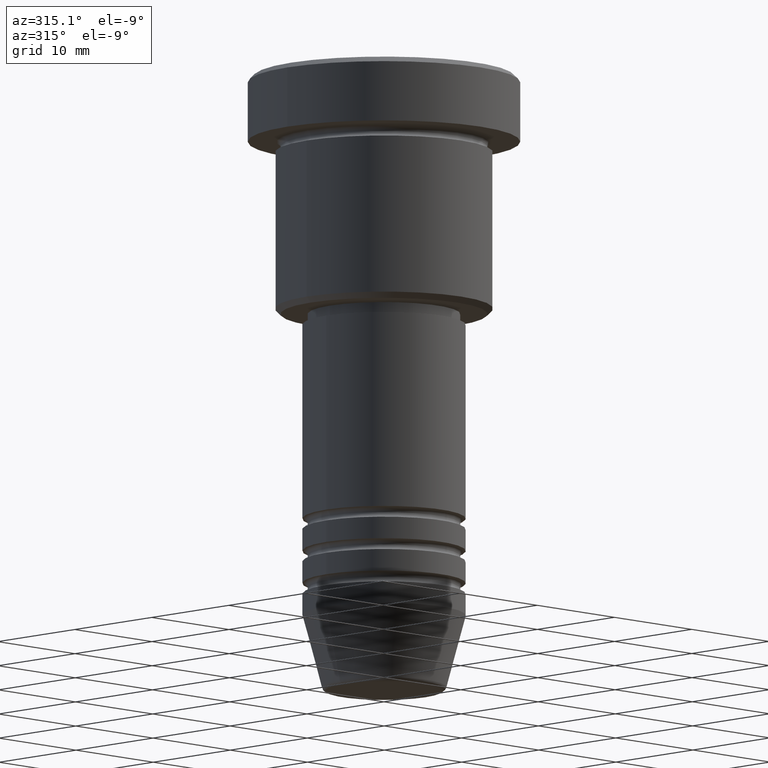
[diagram: clean part render]
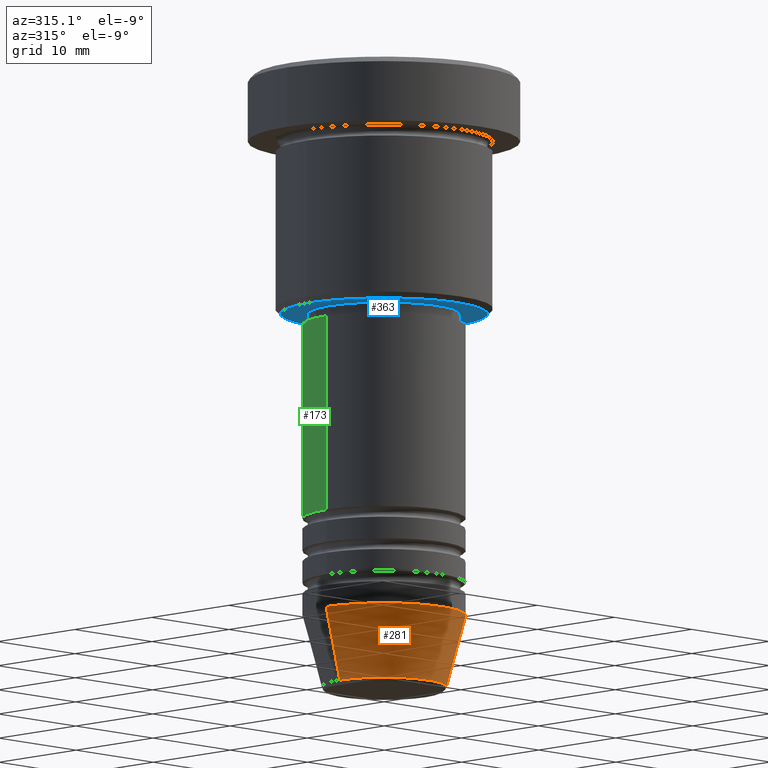
[diagram: same view with three faces highlighted in distinct colors, each labeled with its STEP entity id]
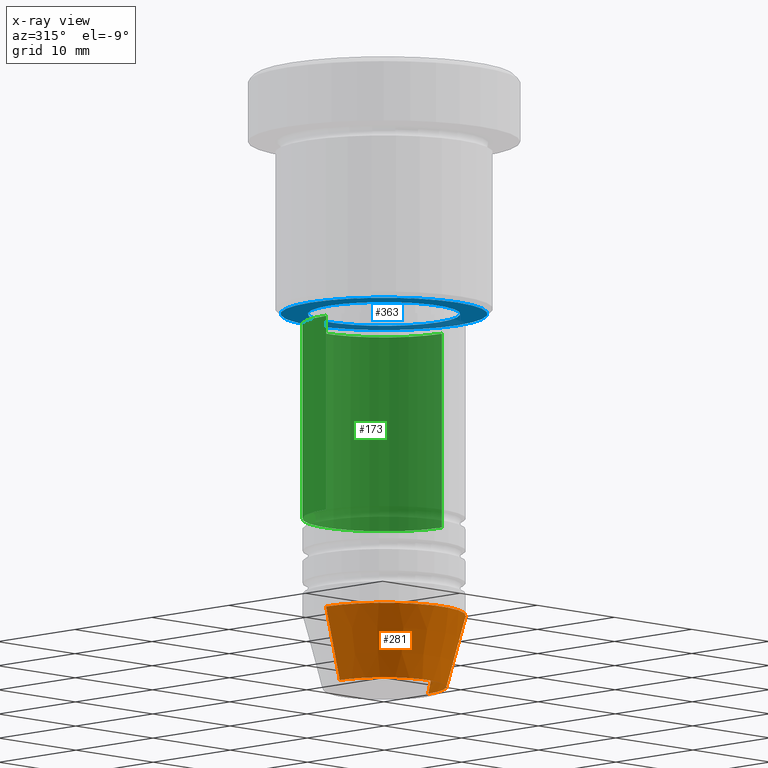
[diagram: x-ray of the same camera — body ghosted, the three highlighted faces saturated]
A machine part, auxiliary view with three faces highlighted in distinct colors.
The next image is the same camera in x-ray (body ghosted, the three faces saturated) — at least one of them is partly hidden behind the body in this view.
Their STEP definitions:

[orange] entity #281 — the highlighted conical surface has half-angle 15 deg.
#16 = DIRECTION ( 'NONE',  ( 0.2588190451025213501, 0.000000000000000000, 0.9659258262890680902 ) ) ;
#30 = CARTESIAN_POINT ( 'NONE',  ( -5.723655072137190380, 8.097153428560734929E-16, -56.62940952255125637 ) ) ;
#75 = CARTESIAN_POINT ( 'NONE',  ( -7.500000000000000000, 9.184850993605147944E-16, -50.00000000000000000 ) ) ;
#104 = VERTEX_POINT ( 'NONE', #75 ) ;
#110 = FACE_OUTER_BOUND ( 'NONE', #497, .T. ) ;
#146 = EDGE_CURVE ( 'NONE', #478, #269, #563, .T. ) ;
#175 = DIRECTION ( 'NONE',  ( -0.2588190451025213501, 3.169619151431772337E-17, 0.9659258262890680902 ) ) ;
#248 = CARTESIAN_POINT ( 'NONE',  ( -7.500000000000000000, 9.184850993605147944E-16, -50.00000000000000000 ) ) ;
#269 = VERTEX_POINT ( 'NONE', #652 ) ;
#270 = DIRECTION ( 'NONE',  ( -0.000000000000000000, -0.000000000000000000, 1.000000000000000000 ) ) ;
#281 = ADVANCED_FACE ( 'NONE', ( #110 ), #797, .T. ) ;
#290 = CARTESIAN_POINT ( 'NONE',  ( 0.000000000000000000, 0.000000000000000000, -56.62940952255125637 ) ) ;
#323 = EDGE_CURVE ( 'NONE', #900, #104, #354, .T. ) ;
#325 = ORIENTED_EDGE ( 'NONE', *, *, #323, .F. ) ;
#327 = VECTOR ( 'NONE', #16, 1000.000000000000000 ) ;
#354 = LINE ( 'NONE', #248, #893 ) ;
#391 = DIRECTION ( 'NONE',  ( -0.000000000000000000, -0.000000000000000000, 1.000000000000000000 ) ) ;
#426 = CIRCLE ( 'NONE', #505, 7.500000000000000000 ) ;
#477 = CARTESIAN_POINT ( 'NONE',  ( 7.500000000000000000, 0.000000000000000000, -50.00000000000000000 ) ) ;
#478 = VERTEX_POINT ( 'NONE', #1159 ) ;
#485 = DIRECTION ( 'NONE',  ( -0.000000000000000000, -0.000000000000000000, 1.000000000000000000 ) ) ;
#497 = EDGE_LOOP ( 'NONE', ( #325, #870, #1097, #1063 ) ) ;
#505 = AXIS2_PLACEMENT_3D ( 'NONE', #781, #485, #966 ) ;
#554 = DIRECTION ( 'NONE',  ( 1.000000000000000000, 0.000000000000000000, 0.000000000000000000 ) ) ;
#563 = LINE ( 'NONE', #477, #327 ) ;
#566 = AXIS2_PLACEMENT_3D ( 'NONE', #290, #270, #554 ) ;
#652 = CARTESIAN_POINT ( 'NONE',  ( 7.500000000000000000, 0.000000000000000000, -50.00000000000000000 ) ) ;
#765 = DIRECTION ( 'NONE',  ( 1.000000000000000000, 0.000000000000000000, 0.000000000000000000 ) ) ;
#781 = CARTESIAN_POINT ( 'NONE',  ( 0.000000000000000000, 0.000000000000000000, -50.00000000000000000 ) ) ;
#797 = CONICAL_SURFACE ( 'NONE', #1103, 7.500000000000000000, 0.2617993877991500740 ) ;
#846 = CARTESIAN_POINT ( 'NONE',  ( 0.000000000000000000, 0.000000000000000000, -50.00000000000000000 ) ) ;
#870 = ORIENTED_EDGE ( 'NONE', *, *, #1058, .T. ) ;
#893 = VECTOR ( 'NONE', #175, 1000.000000000000000 ) ;
#900 = VERTEX_POINT ( 'NONE', #30 ) ;
#946 = EDGE_CURVE ( 'NONE', #104, #269, #426, .T. ) ;
#966 = DIRECTION ( 'NONE',  ( 1.000000000000000000, 0.000000000000000000, 0.000000000000000000 ) ) ;
#1058 = EDGE_CURVE ( 'NONE', #900, #478, #1173, .T. ) ;
#1063 = ORIENTED_EDGE ( 'NONE', *, *, #946, .F. ) ;
#1097 = ORIENTED_EDGE ( 'NONE', *, *, #146, .T. ) ;
#1103 = AXIS2_PLACEMENT_3D ( 'NONE', #846, #391, #765 ) ;
#1159 = CARTESIAN_POINT ( 'NONE',  ( 5.723655072137190380, 0.000000000000000000, -56.62940952255125637 ) ) ;
#1173 = CIRCLE ( 'NONE', #566, 5.723655072137190380 ) ;

[blue] entity #363 — the highlighted planar face has unit normal (0, 0, -1).
#69 = EDGE_CURVE ( 'NONE', #287, #446, #112, .T. ) ;
#89 = AXIS2_PLACEMENT_3D ( 'NONE', #268, #254, #720 ) ;
#112 = CIRCLE ( 'NONE', #920, 9.499999999999987566 ) ;
#131 = ORIENTED_EDGE ( 'NONE', *, *, #824, .T. ) ;
#139 = CARTESIAN_POINT ( 'NONE',  ( 6.999999999999999112, 0.000000000000000000, -22.00000000000000000 ) ) ;
#161 = FACE_BOUND ( 'NONE', #182, .T. ) ;
#182 = EDGE_LOOP ( 'NONE', ( #1008, #131 ) ) ;
#239 = CIRCLE ( 'NONE', #771, 9.499999999999987566 ) ;
#254 = DIRECTION ( 'NONE',  ( 0.000000000000000000, 0.000000000000000000, -1.000000000000000000 ) ) ;
#268 = CARTESIAN_POINT ( 'NONE',  ( 0.000000000000000000, 10.00000000000000000, -22.00000000000000000 ) ) ;
#287 = VERTEX_POINT ( 'NONE', #1127 ) ;
#294 = CIRCLE ( 'NONE', #1170, 6.999999999999999112 ) ;
#330 = DIRECTION ( 'NONE',  ( -0.000000000000000000, -0.000000000000000000, 1.000000000000000000 ) ) ;
#340 = DIRECTION ( 'NONE',  ( 0.000000000000000000, 0.000000000000000000, -1.000000000000000000 ) ) ;
#343 = CARTESIAN_POINT ( 'NONE',  ( 0.000000000000000000, 0.000000000000000000, -22.00000000000000000 ) ) ;
#363 = ADVANCED_FACE ( 'NONE', ( #827, #161 ), #445, .T. ) ;
#377 = CARTESIAN_POINT ( 'NONE',  ( 0.000000000000000000, 0.000000000000000000, -22.00000000000000000 ) ) ;
#420 = CARTESIAN_POINT ( 'NONE',  ( -9.499999999999987566, 1.194030629168668681E-15, -22.00000000000000000 ) ) ;
#445 = PLANE ( 'NONE',  #89 ) ;
#446 = VERTEX_POINT ( 'NONE', #420 ) ;
#534 = EDGE_LOOP ( 'NONE', ( #999, #1025 ) ) ;
#577 = DIRECTION ( 'NONE',  ( 1.000000000000000000, 0.000000000000000000, 0.000000000000000000 ) ) ;
#625 = VERTEX_POINT ( 'NONE', #822 ) ;
#720 = DIRECTION ( 'NONE',  ( -1.000000000000000000, 0.000000000000000000, -0.000000000000000000 ) ) ;
#733 = CIRCLE ( 'NONE', #879, 6.999999999999999112 ) ;
#748 = DIRECTION ( 'NONE',  ( 0.000000000000000000, 0.000000000000000000, -1.000000000000000000 ) ) ;
#756 = EDGE_CURVE ( 'NONE', #1128, #625, #294, .T. ) ;
#763 = DIRECTION ( 'NONE',  ( -1.000000000000000000, 0.000000000000000000, 0.000000000000000000 ) ) ;
#771 = AXIS2_PLACEMENT_3D ( 'NONE', #377, #748, #763 ) ;
#777 = EDGE_CURVE ( 'NONE', #446, #287, #239, .T. ) ;
#822 = CARTESIAN_POINT ( 'NONE',  ( -6.999999999999999112, 8.572527594031472204E-16, -22.00000000000000000 ) ) ;
#824 = EDGE_CURVE ( 'NONE', #625, #1128, #733, .T. ) ;
#827 = FACE_OUTER_BOUND ( 'NONE', #534, .T. ) ;
#853 = DIRECTION ( 'NONE',  ( -0.000000000000000000, -0.000000000000000000, 1.000000000000000000 ) ) ;
#879 = AXIS2_PLACEMENT_3D ( 'NONE', #343, #330, #1076 ) ;
#898 = DIRECTION ( 'NONE',  ( -1.000000000000000000, 0.000000000000000000, 0.000000000000000000 ) ) ;
#920 = AXIS2_PLACEMENT_3D ( 'NONE', #1175, #340, #898 ) ;
#999 = ORIENTED_EDGE ( 'NONE', *, *, #69, .T. ) ;
#1008 = ORIENTED_EDGE ( 'NONE', *, *, #756, .T. ) ;
#1025 = ORIENTED_EDGE ( 'NONE', *, *, #777, .T. ) ;
#1071 = CARTESIAN_POINT ( 'NONE',  ( 0.000000000000000000, 0.000000000000000000, -22.00000000000000000 ) ) ;
#1076 = DIRECTION ( 'NONE',  ( 1.000000000000000000, 0.000000000000000000, 0.000000000000000000 ) ) ;
#1127 = CARTESIAN_POINT ( 'NONE',  ( 9.499999999999987566, 0.000000000000000000, -22.00000000000000000 ) ) ;
#1128 = VERTEX_POINT ( 'NONE', #139 ) ;
#1170 = AXIS2_PLACEMENT_3D ( 'NONE', #1071, #853, #577 ) ;
#1175 = CARTESIAN_POINT ( 'NONE',  ( 0.000000000000000000, 0.000000000000000000, -22.00000000000000000 ) ) ;

[green] entity #173 — the highlighted cylindrical surface (partial cylindrical patch) has radius 7.5 mm, axis along (-0, -0, 1).
#10 = CYLINDRICAL_SURFACE ( 'NONE', #372, 7.500000000000000000 ) ;
#11 = EDGE_CURVE ( 'NONE', #669, #778, #1167, .T. ) ;
#13 = DIRECTION ( 'NONE',  ( 1.000000000000000000, 0.000000000000000000, 0.000000000000000000 ) ) ;
#173 = ADVANCED_FACE ( 'NONE', ( #381 ), #10, .T. ) ;
#180 = ORIENTED_EDGE ( 'NONE', *, *, #1083, .F. ) ;
#191 = DIRECTION ( 'NONE',  ( 1.000000000000000000, 0.000000000000000000, 0.000000000000000000 ) ) ;
#223 = DIRECTION ( 'NONE',  ( -0.000000000000000000, -0.000000000000000000, 1.000000000000000000 ) ) ;
#240 = ORIENTED_EDGE ( 'NONE', *, *, #11, .T. ) ;
#369 = LINE ( 'NONE', #463, #1137 ) ;
#372 = AXIS2_PLACEMENT_3D ( 'NONE', #745, #468, #191 ) ;
#381 = FACE_OUTER_BOUND ( 'NONE', #706, .T. ) ;
#463 = CARTESIAN_POINT ( 'NONE',  ( 7.500000000000000000, 0.000000000000000000, 0.000000000000000000 ) ) ;
#468 = DIRECTION ( 'NONE',  ( -0.000000000000000000, -0.000000000000000000, 1.000000000000000000 ) ) ;
#531 = CARTESIAN_POINT ( 'NONE',  ( -7.500000000000000000, 9.184850993605147944E-16, 0.000000000000000000 ) ) ;
#548 = AXIS2_PLACEMENT_3D ( 'NONE', #651, #845, #1065 ) ;
#550 = ORIENTED_EDGE ( 'NONE', *, *, #1099, .T. ) ;
#651 = CARTESIAN_POINT ( 'NONE',  ( 0.000000000000000000, 0.000000000000000000, -23.00000000000000000 ) ) ;
#669 = VERTEX_POINT ( 'NONE', #1001 ) ;
#706 = EDGE_LOOP ( 'NONE', ( #550, #240, #883, #180 ) ) ;
#742 = DIRECTION ( 'NONE',  ( -0.000000000000000000, -0.000000000000000000, 1.000000000000000000 ) ) ;
#745 = CARTESIAN_POINT ( 'NONE',  ( 0.000000000000000000, 0.000000000000000000, 0.000000000000000000 ) ) ;
#778 = VERTEX_POINT ( 'NONE', #1113 ) ;
#780 = EDGE_CURVE ( 'NONE', #847, #778, #1064, .T. ) ;
#796 = CARTESIAN_POINT ( 'NONE',  ( 7.500000000000000000, 0.000000000000000000, -40.99999999999997868 ) ) ;
#816 = AXIS2_PLACEMENT_3D ( 'NONE', #1045, #223, #13 ) ;
#845 = DIRECTION ( 'NONE',  ( -0.000000000000000000, -0.000000000000000000, 1.000000000000000000 ) ) ;
#847 = VERTEX_POINT ( 'NONE', #1010 ) ;
#881 = VECTOR ( 'NONE', #993, 1000.000000000000000 ) ;
#883 = ORIENTED_EDGE ( 'NONE', *, *, #780, .F. ) ;
#993 = DIRECTION ( 'NONE',  ( -0.000000000000000000, -0.000000000000000000, 1.000000000000000000 ) ) ;
#1001 = CARTESIAN_POINT ( 'NONE',  ( -7.500000000000000000, 9.184850993605147944E-16, -40.99999999999997868 ) ) ;
#1010 = CARTESIAN_POINT ( 'NONE',  ( 7.500000000000000000, 0.000000000000000000, -23.00000000000000000 ) ) ;
#1021 = VERTEX_POINT ( 'NONE', #796 ) ;
#1045 = CARTESIAN_POINT ( 'NONE',  ( 0.000000000000000000, 0.000000000000000000, -40.99999999999997868 ) ) ;
#1064 = CIRCLE ( 'NONE', #548, 7.500000000000000000 ) ;
#1065 = DIRECTION ( 'NONE',  ( 1.000000000000000000, 0.000000000000000000, 0.000000000000000000 ) ) ;
#1083 = EDGE_CURVE ( 'NONE', #1021, #847, #369, .T. ) ;
#1099 = EDGE_CURVE ( 'NONE', #1021, #669, #1117, .T. ) ;
#1113 = CARTESIAN_POINT ( 'NONE',  ( -7.500000000000000000, 9.184850993605147944E-16, -23.00000000000000000 ) ) ;
#1117 = CIRCLE ( 'NONE', #816, 7.500000000000000000 ) ;
#1137 = VECTOR ( 'NONE', #742, 1000.000000000000000 ) ;
#1167 = LINE ( 'NONE', #531, #881 ) ;